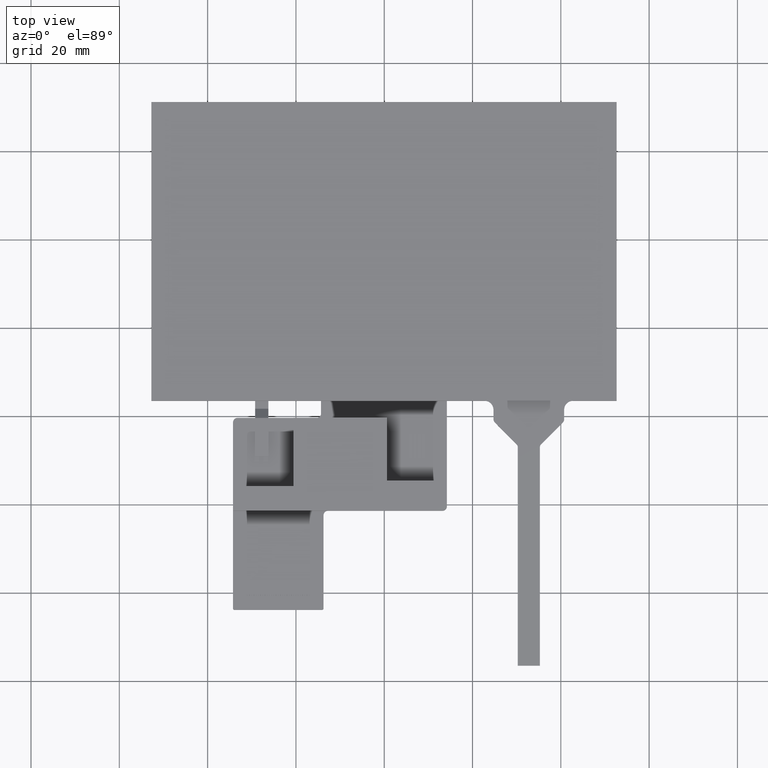
[diagram: clean part render]
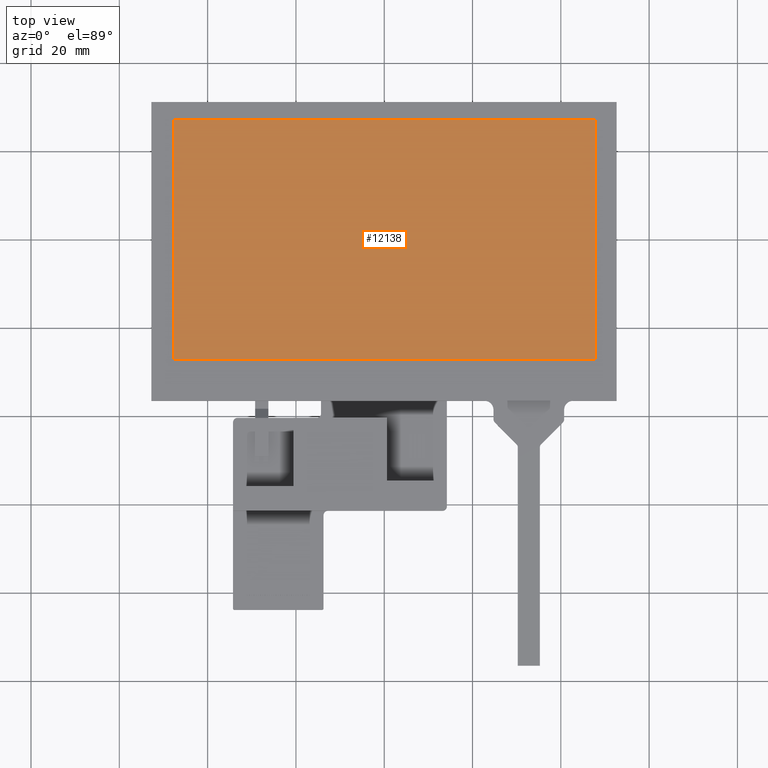
[diagram: same view with one face highlighted and labeled with its STEP entity id]
A machine part, top view. The second image highlights one B-rep face of the part: STEP entity #12138.
In plain terms, the highlighted planar face has unit normal (0, 0, 1).
Its self-contained STEP definition (entity closure, byte-faithful):
#324=FACE_OUTER_BOUND('',#952,.T.);
#952=EDGE_LOOP('',(#8259,#8260,#8261,#8262));
#1631=LINE('',#16900,#3301);
#1632=LINE('',#16902,#3302);
#1633=LINE('',#16904,#3303);
#1634=LINE('',#16905,#3304);
#3301=VECTOR('',#13644,10.);
#3302=VECTOR('',#13645,10.);
#3303=VECTOR('',#13646,10.);
#3304=VECTOR('',#13647,10.);
#4974=VERTEX_POINT('',#16898);
#4975=VERTEX_POINT('',#16899);
#4976=VERTEX_POINT('',#16901);
#4977=VERTEX_POINT('',#16903);
#6197=EDGE_CURVE('',#4974,#4975,#1631,.T.);
#6198=EDGE_CURVE('',#4975,#4976,#1632,.T.);
#6199=EDGE_CURVE('',#4976,#4977,#1633,.T.);
#6200=EDGE_CURVE('',#4977,#4974,#1634,.T.);
#8259=ORIENTED_EDGE('',*,*,#6197,.F.);
#8260=ORIENTED_EDGE('',*,*,#6200,.F.);
#8261=ORIENTED_EDGE('',*,*,#6199,.F.);
#8262=ORIENTED_EDGE('',*,*,#6198,.F.);
#11585=PLANE('',#12807);
#12138=ADVANCED_FACE('',(#324),#11585,.T.);
#12807=AXIS2_PLACEMENT_3D('',#17115,#13839,#13840);
#13644=DIRECTION('',(1.63388230261244E-16,-1.,0.));
#13645=DIRECTION('',(-1.,-4.64820190339191E-17,0.));
#13646=DIRECTION('',(-1.63388230261245E-16,1.,0.));
#13647=DIRECTION('',(1.,1.85928076135676E-16,0.));
#13839=DIRECTION('center_axis',(0.,0.,1.));
#13840=DIRECTION('ref_axis',(1.,0.,0.));
#16898=CARTESIAN_POINT('',(47.77,27.18,0.));
#16899=CARTESIAN_POINT('',(47.77,-27.18,0.));
#16900=CARTESIAN_POINT('',(47.77,-15.09,0.));
#16901=CARTESIAN_POINT('',(-47.77,-27.18,0.));
#16902=CARTESIAN_POINT('',(-23.91,-27.18,0.));
#16903=CARTESIAN_POINT('',(-47.77,27.18,0.));
#16904=CARTESIAN_POINT('',(-47.77,12.09,0.));
#16905=CARTESIAN_POINT('',(23.86,27.18,0.));
#17115=CARTESIAN_POINT('Origin',(-0.0500000000000039,-2.99999999999998,
0.));